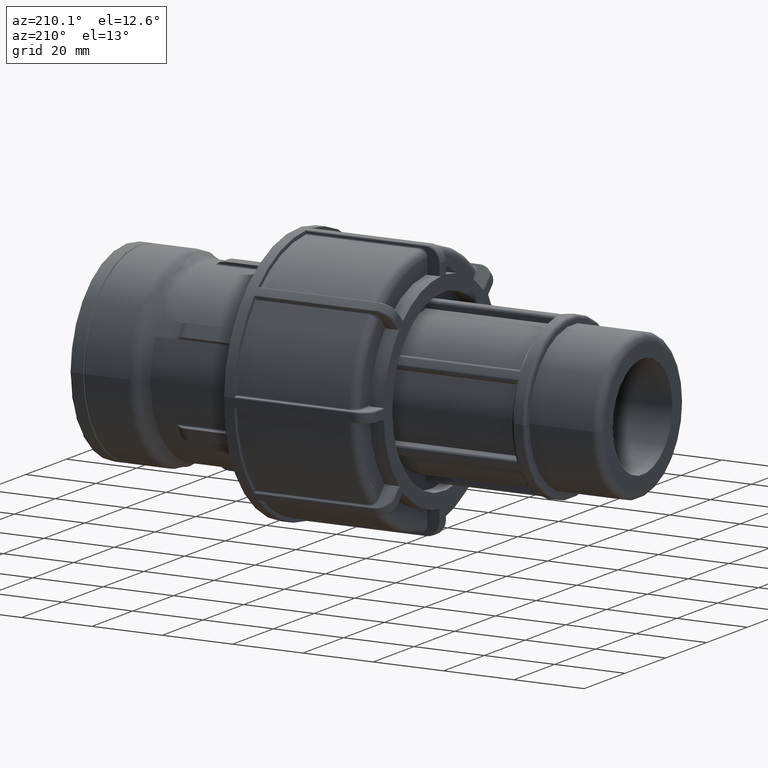
[diagram: clean part render]
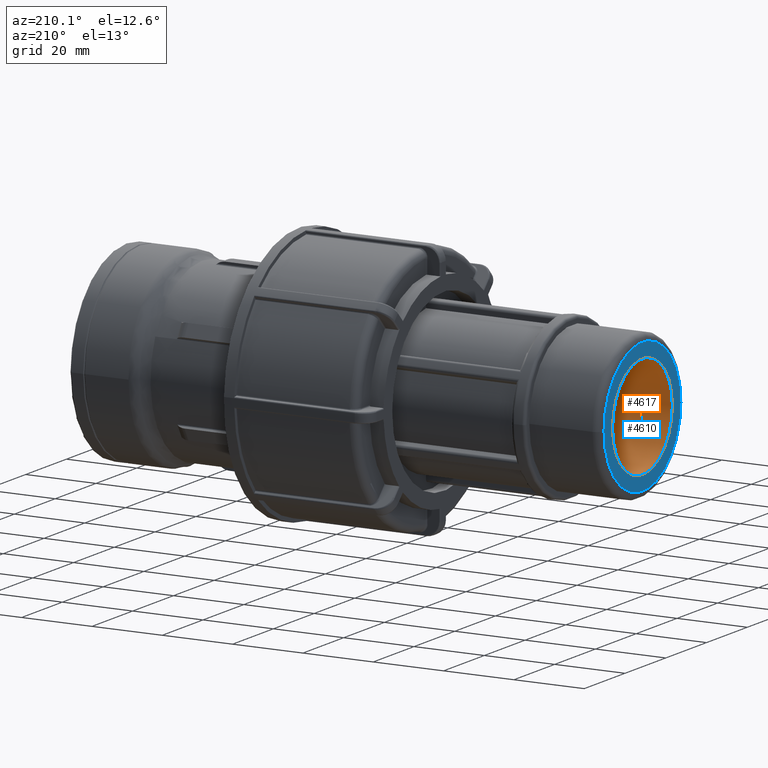
[diagram: same view with the hole feature highlighted: cylindrical wall and planar end face, labeled with their STEP entity ids]
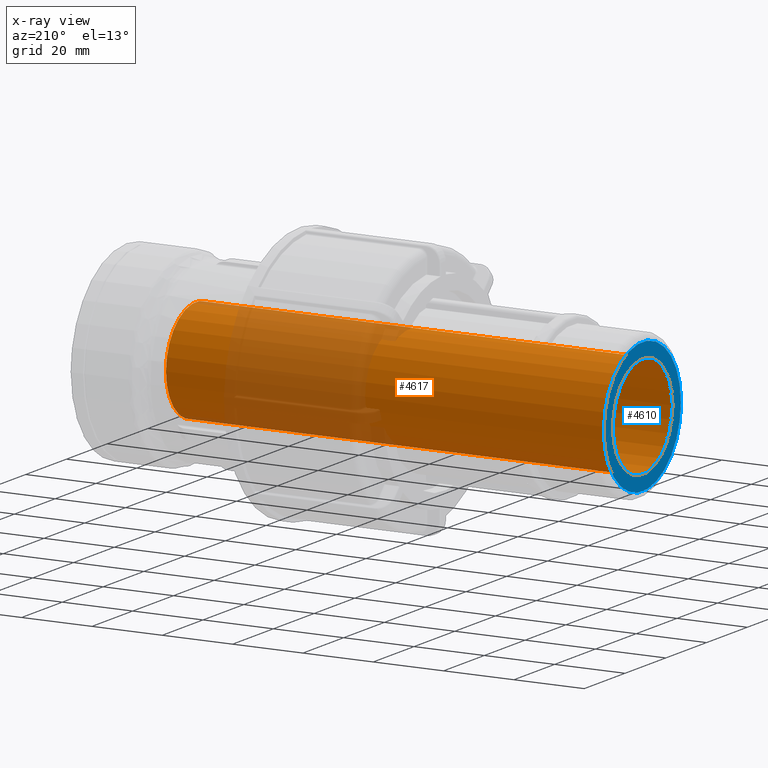
[diagram: x-ray of the same camera — body ghosted, the hole faces saturated]
A machine part, auxiliary view. The highlighted faces form one hole feature of diameter 29.337 mm: the cylindrical wall (entity #4617, orange) and its adjacent planar end face (entity #4610, blue) — they share a circular edge in the B-rep.
The next image is the same camera in x-ray (body ghosted, the hole faces saturated) — the bore reads through the body.
Wall:
#76=FACE_BOUND('',#1396,.T.);
#836=CYLINDRICAL_SURFACE('',#5109,14.6685);
#1102=FACE_OUTER_BOUND('',#1395,.T.);
#1395=EDGE_LOOP('',(#4312));
#1396=EDGE_LOOP('',(#4313));
#1807=CIRCLE('',#5099,14.6685);
#1810=CIRCLE('',#5108,14.6685);
#2258=VERTEX_POINT('',#9493);
#2261=VERTEX_POINT('',#9505);
#2945=EDGE_CURVE('',#2258,#2258,#1807,.T.);
#2948=EDGE_CURVE('',#2261,#2261,#1810,.T.);
#4312=ORIENTED_EDGE('',*,*,#2948,.T.);
#4313=ORIENTED_EDGE('',*,*,#2945,.F.);
#4617=ADVANCED_FACE('',(#1102,#76),#836,.F.);
#5099=AXIS2_PLACEMENT_3D('',#9494,#6346,#6347);
#5108=AXIS2_PLACEMENT_3D('',#9506,#6364,#6365);
#5109=AXIS2_PLACEMENT_3D('',#9507,#6366,#6367);
#6346=DIRECTION('center_axis',(1.,0.,0.));
#6347=DIRECTION('ref_axis',(0.,0.,-1.));
#6364=DIRECTION('center_axis',(1.,0.,0.));
#6365=DIRECTION('ref_axis',(0.,0.,-1.));
#6366=DIRECTION('center_axis',(1.,0.,0.));
#6367=DIRECTION('ref_axis',(0.,1.,0.));
#9493=CARTESIAN_POINT('',(-147.,14.6685,0.));
#9494=CARTESIAN_POINT('Origin',(-147.,0.,0.));
#9505=CARTESIAN_POINT('',(-20.,14.6685,0.));
#9506=CARTESIAN_POINT('Origin',(-20.,0.,0.));
#9507=CARTESIAN_POINT('Origin',(-83.5,0.,0.));
End face:
#70=FACE_BOUND('',#1383,.T.);
#152=PLANE('',#5098);
#1095=FACE_OUTER_BOUND('',#1382,.T.);
#1382=EDGE_LOOP('',(#4296));
#1383=EDGE_LOOP('',(#4297));
#1805=CIRCLE('',#5096,18.8595);
#1807=CIRCLE('',#5099,14.6685);
#2256=VERTEX_POINT('',#9488);
#2258=VERTEX_POINT('',#9493);
#2943=EDGE_CURVE('',#2256,#2256,#1805,.T.);
#2945=EDGE_CURVE('',#2258,#2258,#1807,.T.);
#4296=ORIENTED_EDGE('',*,*,#2943,.F.);
#4297=ORIENTED_EDGE('',*,*,#2945,.T.);
#4610=ADVANCED_FACE('',(#1095,#70),#152,.T.);
#5096=AXIS2_PLACEMENT_3D('',#9489,#6340,#6341);
#5098=AXIS2_PLACEMENT_3D('',#9492,#6344,#6345);
#5099=AXIS2_PLACEMENT_3D('',#9494,#6346,#6347);
#6340=DIRECTION('center_axis',(1.,0.,0.));
#6341=DIRECTION('ref_axis',(0.,-1.,1.83697019872103E-16));
#6344=DIRECTION('center_axis',(-1.,0.,0.));
#6345=DIRECTION('ref_axis',(0.,0.,1.));
#6346=DIRECTION('center_axis',(1.,0.,0.));
#6347=DIRECTION('ref_axis',(0.,0.,-1.));
#9488=CARTESIAN_POINT('',(-147.,18.8595,-1.15481131542597E-15));
#9489=CARTESIAN_POINT('Origin',(-147.,0.,0.));
#9492=CARTESIAN_POINT('Origin',(-147.,20.955,0.));
#9493=CARTESIAN_POINT('',(-147.,14.6685,0.));
#9494=CARTESIAN_POINT('Origin',(-147.,0.,0.));